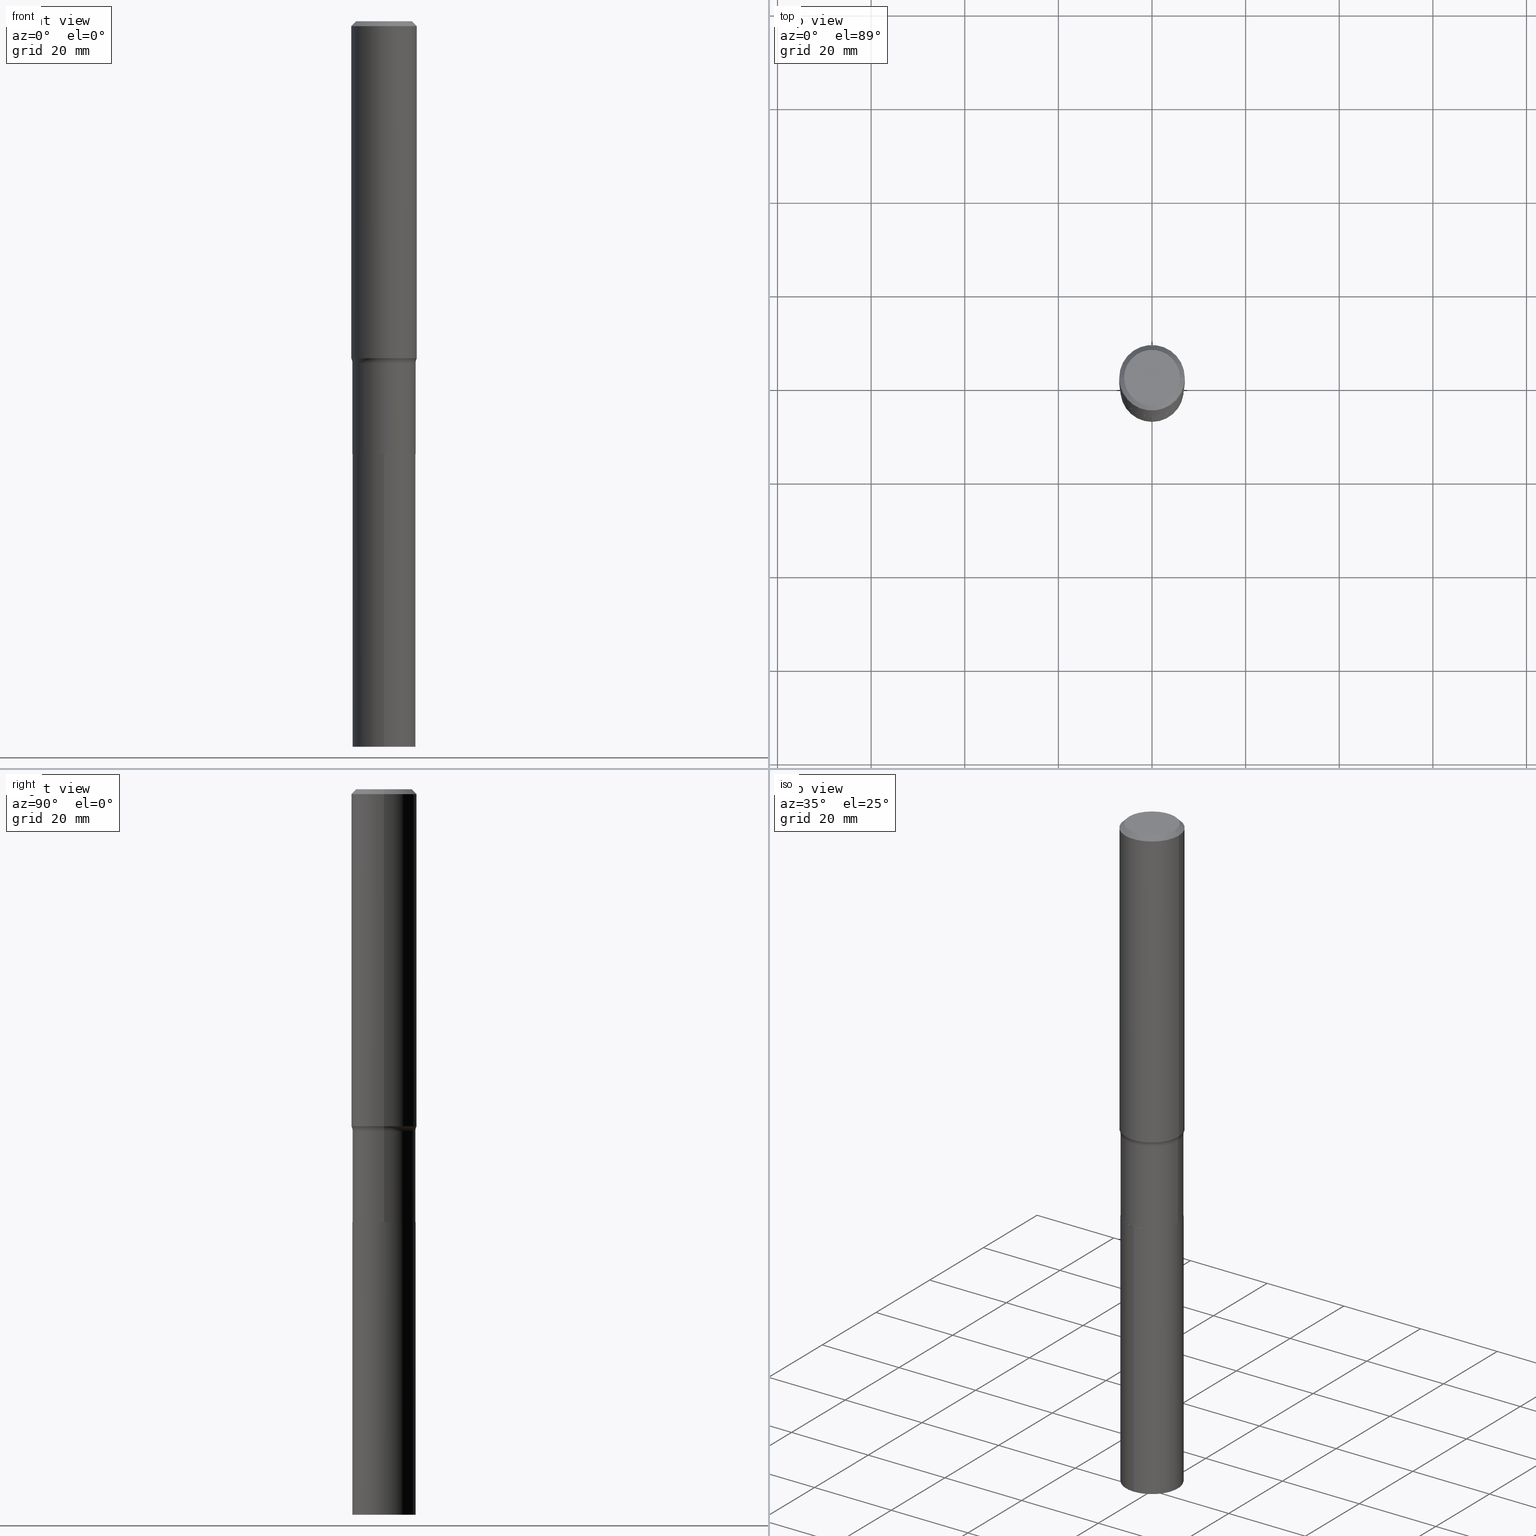
[diagram: canonical four-view strip — front | top / right | iso, engineering-drawing reading convention]
A machine part, canonical four-view strip (front | top / right | iso — engineering-drawing reading convention). The complete STEP part file that produces these views, byte-faithful:
ISO-10303-21;
HEADER;
FILE_DESCRIPTION (( 'STEP AP203' ),
    '1' );
FILE_NAME ('58913.STEP',
    '2024-04-19T14:50:29',
    ( '' ),
    ( '' ),
    'SwSTEP 2.0',
    'SolidWorks 2023',
    '' );
FILE_SCHEMA (( 'CONFIG_CONTROL_DESIGN' ));
ENDSEC;

DATA;
#1 = APPROVAL_PERSON_ORGANIZATION ( #173, #232, #253 ) ;
#2 = AXIS2_PLACEMENT_3D ( 'NONE', #134, #61, #28 ) ;
#3 = ORIENTED_EDGE ( 'NONE', *, *, #407, .T. ) ;
#4 = EDGE_CURVE ( 'NONE', #175, #181, #406, .T. ) ;
#5 = CARTESIAN_POINT ( 'NONE',  ( 1.492223714302713929E-28, -2.130783589276710899E-14, -6.102400000000001157 ) ) ;
#6 = EDGE_CURVE ( 'NONE', #316, #137, #240, .T. ) ;
#7 = DIRECTION ( 'NONE',  ( -1.000000000000000000, 6.982962677686265922E-15, -4.876176775795935793E-29 ) ) ;
#8 = CARTESIAN_POINT ( 'NONE',  ( 0.2655999999999999472, -1.854674887193472050E-15, 1.295112551651400461E-29 ) ) ;
#9 = CONICAL_SURFACE ( 'NONE', #19, 0.2651000000000000023, 0.7853981633972775267 ) ;
#10 = VERTEX_POINT ( 'NONE', #158 ) ;
#11 = CC_DESIGN_APPROVAL ( #464, ( #20 ) ) ;
#12 = DIRECTION ( 'NONE',  ( -0.7071067811864267805, 7.493145998869918709E-15, 0.7071067811866682540 ) ) ;
#13 = DESIGN_CONTEXT ( 'detailed design', #108, 'design' ) ;
#14 = CARTESIAN_POINT ( 'NONE',  ( 1.492223714302713929E-28, -2.130783589276710899E-14, -6.102400000000001157 ) ) ;
#15 = CC_DESIGN_DATE_AND_TIME_ASSIGNMENT ( #428, #112, ( #119 ) ) ;
#16 = DIRECTION ( 'NONE',  ( -2.445468806185136597E-29, 3.491481338843145583E-15, 1.000000000000000000 ) ) ;
#17 = CARTESIAN_POINT ( 'NONE',  ( 7.027543708334228001E-29, -1.003346992343354799E-14, -2.873699999999999921 ) ) ;
#18 = DIRECTION ( 'NONE',  ( 1.000000000000000000, -6.982962677686267499E-15, 4.876157962347795834E-29 ) ) ;
#19 = AXIS2_PLACEMENT_3D ( 'NONE', #154, #259, #369 ) ;
#20 = SECURITY_CLASSIFICATION ( '', '', #325 ) ;
#21 = CARTESIAN_POINT ( 'NONE',  ( 8.904930110842557101E-29, -1.271388014726343106E-14, -3.641399999999999970 ) ) ;
#22 = CARTESIAN_POINT ( 'NONE',  ( 1.010956804476941872E-30, -1.443378385477765316E-16, -0.04134000000000025848 ) ) ;
#23 = EDGE_CURVE ( 'NONE', #175, #341, #335, .T. ) ;
#24 = DIRECTION ( 'NONE',  ( -2.445468806185136597E-29, 3.491481338843145583E-15, 1.000000000000000000 ) ) ;
#25 = DIRECTION ( 'NONE',  ( 1.000000000000000000, -6.982962677686265922E-15, 4.876176775795935793E-29 ) ) ;
#26 = AXIS2_PLACEMENT_3D ( 'NONE', #445, #365, #7 ) ;
#27 = ORIENTED_EDGE ( 'NONE', *, *, #238, .F. ) ;
#28 = DIRECTION ( 'NONE',  ( 1.000000000000000000, 0.000000000000000000, 0.000000000000000000 ) ) ;
#29 = ORIENTED_EDGE ( 'NONE', *, *, #23, .T. ) ;
#30 = VERTEX_POINT ( 'NONE', #217 ) ;
#31 = AXIS2_PLACEMENT_3D ( 'NONE', #455, #135, #277 ) ;
#32 = CIRCLE ( 'NONE', #133, 0.2756000000000003447 ) ;
#33 = ORIENTED_EDGE ( 'NONE', *, *, #174, .T. ) ;
#34 = ORIENTED_EDGE ( 'NONE', *, *, #209, .T. ) ;
#35 = DIRECTION ( 'NONE',  ( -2.445468806185136597E-29, 3.491481338843145583E-15, 1.000000000000000000 ) ) ;
#36 = PERSON_AND_ORGANIZATION ( #323, #433 ) ;
#37 = TOROIDAL_SURFACE ( 'NONE', #423, 0.3455999999999998518, 0.08000000000000000167 ) ;
#38 = AXIS2_PLACEMENT_3D ( 'NONE', #405, #120, #296 ) ;
#39 = DIRECTION ( 'NONE',  ( 2.445468806185136597E-29, -3.491481338843145583E-15, -1.000000000000000000 ) ) ;
#40 = EDGE_CURVE ( 'NONE', #341, #175, #183, .T. ) ;
#41 = DIRECTION ( 'NONE',  ( 6.982962677686265922E-15, 1.000000000000000000, -3.492058409387922113E-15 ) ) ;
#42 = DIRECTION ( 'NONE',  ( -2.445468806185136597E-29, 3.491481338843145583E-15, 1.000000000000000000 ) ) ;
#43 = FACE_OUTER_BOUND ( 'NONE', #219, .T. ) ;
#44 = CARTESIAN_POINT ( 'NONE',  ( 1.010956804476941872E-30, -1.443378385477765316E-16, -0.04134000000000025848 ) ) ;
#45 = AXIS2_PLACEMENT_3D ( 'NONE', #243, #384, #97 ) ;
#46 = DIRECTION ( 'NONE',  ( 1.000000000000000000, -6.982962677686267499E-15, 4.876176775795935793E-29 ) ) ;
#47 = VECTOR ( 'NONE', #375, 39.37007874015748143 ) ;
#48 = CARTESIAN_POINT ( 'NONE',  ( -0.2651000000000000023, -1.083023135476340624E-14, -3.641399999999999970 ) ) ;
#49 = DIRECTION ( 'NONE',  ( -2.445468806185136597E-29, 3.491481338843145583E-15, 1.000000000000000000 ) ) ;
#50 = CARTESIAN_POINT ( 'NONE',  ( -2.608665447120605644E-29, -4.641308619886846511E-14, -6.102400000000001157 ) ) ;
#51 = DIRECTION ( 'NONE',  ( -1.000000000000000000, 6.982962677686267499E-15, 0.000000000000000000 ) ) ;
#52 = ORIENTED_EDGE ( 'NONE', *, *, #4, .F. ) ;
#53 = CC_DESIGN_PERSON_AND_ORGANIZATION_ASSIGNMENT ( #36, #71, ( #56 ) ) ;
#54 = FACE_OUTER_BOUND ( 'NONE', #458, .T. ) ;
#55 = PLANE ( 'NONE',  #387 ) ;
#56 = PRODUCT_DEFINITION_FORMATION_WITH_SPECIFIED_SOURCE ( 'ANY', '', #357, .NOT_KNOWN. ) ;
#57 = EDGE_CURVE ( 'NONE', #421, #297, #460, .T. ) ;
#58 = CARTESIAN_POINT ( 'NONE',  ( -0.2756000000000000116, 1.780166675422558965E-15, -0.04134000000000025848 ) ) ;
#59 = DIRECTION ( 'NONE',  ( 1.000000000000000000, -6.982962677686264344E-15, 0.000000000000000000 ) ) ;
#60 = LOCAL_TIME ( 10, 50, 29.00000000000000000, #260 ) ;
#61 = DIRECTION ( 'NONE',  ( 0.000000000000000000, 0.000000000000000000, 1.000000000000000000 ) ) ;
#62 = ORIENTED_EDGE ( 'NONE', *, *, #378, .F. ) ;
#63 = EDGE_LOOP ( 'NONE', ( #29, #64, #462, #52 ) ) ;
#64 = ORIENTED_EDGE ( 'NONE', *, *, #437, .T. ) ;
#65 = COORDINATED_UNIVERSAL_TIME_OFFSET ( 5, 0, .BEHIND. ) ;
#66 = LOCAL_TIME ( 10, 50, 29.00000000000000000, #65 ) ;
#67 = ORIENTED_EDGE ( 'NONE', *, *, #278, .T. ) ;
#68 = APPROVAL_ROLE ( '' ) ;
#69 = ADVANCED_FACE ( 'NONE', ( #74 ), #262, .T. ) ;
#70 = ORIENTED_EDGE ( 'NONE', *, *, #276, .F. ) ;
#71 = PERSON_AND_ORGANIZATION_ROLE ( 'creator' ) ;
#72 = LINE ( 'NONE', #218, #291 ) ;
#73 = ADVANCED_FACE ( 'NONE', ( #188 ), #132, .F. ) ;
#74 = FACE_OUTER_BOUND ( 'NONE', #334, .T. ) ;
#75 = PERSON_AND_ORGANIZATION ( #323, #433 ) ;
#76 = AXIS2_PLACEMENT_3D ( 'NONE', #131, #126, #59 ) ;
#77 = AXIS2_PLACEMENT_3D ( 'NONE', #83, #302, #370 ) ;
#78 = CYLINDRICAL_SURFACE ( 'NONE', #101, 0.2756000000000001782 ) ;
#79 = CARTESIAN_POINT ( 'NONE',  ( -0.2656000000000000028, -9.485600658834952659E-15, -3.640899999999999803 ) ) ;
#80 = MANIFOLD_SOLID_BREP ( 'Body-Move/Copy2[1]', #228 ) ;
#81 = DIRECTION ( 'NONE',  ( 1.000000000000000000, -6.982962677686265922E-15, 0.000000000000000000 ) ) ;
#82 = CC_DESIGN_PERSON_AND_ORGANIZATION_ASSIGNMENT ( #328, #426, ( #20 ) ) ;
#83 = CARTESIAN_POINT ( 'NONE',  ( 8.904930110842557101E-29, -1.271388014726343106E-14, -3.641399999999999970 ) ) ;
#84 = CARTESIAN_POINT ( 'NONE',  ( -0.3455999999999998518, -7.577834228646642402E-15, -2.873699999999999921 ) ) ;
#85 = DIRECTION ( 'NONE',  ( -6.982962677686265133E-15, -1.000000000000000000, 4.114228906120878260E-15 ) ) ;
#86 = CIRCLE ( 'NONE', #402, 0.2342600000000000238 ) ;
#87 = DIRECTION ( 'NONE',  ( -2.445468806185136597E-29, 3.491481338843145583E-15, 1.000000000000000000 ) ) ;
#88 = AXIS2_PLACEMENT_3D ( 'NONE', #299, #16, #306 ) ;
#89 = CARTESIAN_POINT ( 'NONE',  ( -0.2651000000000000023, -1.082758212758929425E-14, -3.641399999999999970 ) ) ;
#90 = DIRECTION ( 'NONE',  ( -2.445468806185136597E-29, 3.491481338843145583E-15, 1.000000000000000000 ) ) ;
#91 = CYLINDRICAL_SURFACE ( 'NONE', #140, 0.2656000000000000028 ) ;
#92 = CARTESIAN_POINT ( 'NONE',  ( 0.2656000000000000028, -1.456680929378748200E-14, -3.640899999999999803 ) ) ;
#93 = ADVANCED_FACE ( 'NONE', ( #113 ), #9, .T. ) ;
#94 = FACE_OUTER_BOUND ( 'NONE', #288, .T. ) ;
#95 = CIRCLE ( 'NONE', #255, 0.2656000000000000028 ) ;
#96 = CIRCLE ( 'NONE', #117, 0.2756000000000000116 ) ;
#97 = DIRECTION ( 'NONE',  ( -6.982962677686265133E-15, -1.000000000000000000, 4.114228906120878260E-15 ) ) ;
#98 = ADVANCED_FACE ( 'NONE', ( #152 ), #182, .F. ) ;
#99 = PERSON_AND_ORGANIZATION_ROLE ( 'design_owner' ) ;
#100 = ORIENTED_EDGE ( 'NONE', *, *, #189, .T. ) ;
#101 = AXIS2_PLACEMENT_3D ( 'NONE', #194, #235, #167 ) ;
#102 = PRODUCT_RELATED_PRODUCT_CATEGORY ( 'detail', '', ( #357 ) ) ;
#103 = ORIENTED_EDGE ( 'NONE', *, *, #268, .F. ) ;
#104 = PRODUCT_DEFINITION_SHAPE ( 'NONE', 'NONE',  #119 ) ;
#105 = ORIENTED_EDGE ( 'NONE', *, *, #106, .T. ) ;
#106 = EDGE_CURVE ( 'NONE', #137, #316, #95, .T. ) ;
#107 = ORIENTED_EDGE ( 'NONE', *, *, #174, .F. ) ;
#108 = APPLICATION_CONTEXT ( 'configuration controlled 3d designs of mechanical parts and assemblies' ) ;
#109 = PERSON_AND_ORGANIZATION_ROLE ( 'creator' ) ;
#110 = VECTOR ( 'NONE', #191, 39.37007874015748143 ) ;
#111 = EDGE_LOOP ( 'NONE', ( #300, #355, #103, #62 ) ) ;
#112 = DATE_TIME_ROLE ( 'creation_date' ) ;
#113 = FACE_OUTER_BOUND ( 'NONE', #63, .T. ) ;
#114 = PERSON_AND_ORGANIZATION ( #323, #433 ) ;
#115 = DIRECTION ( 'NONE',  ( -6.982962677686265133E-15, -1.000000000000000000, 4.114228906120878260E-15 ) ) ;
#116 = FACE_OUTER_BOUND ( 'NONE', #111, .T. ) ;
#117 = AXIS2_PLACEMENT_3D ( 'NONE', #392, #363, #333 ) ;
#118 = ORIENTED_EDGE ( 'NONE', *, *, #180, .T. ) ;
#119 = PRODUCT_DEFINITION ( 'UNKNOWN', '', #56, #13 ) ;
#120 = DIRECTION ( 'NONE',  ( -2.445065839977480244E-29, 3.492058409387921719E-15, 1.000000000000000000 ) ) ;
#121 = CARTESIAN_POINT ( 'NONE',  ( 0.2651000000000000023, -1.456506355311805971E-14, -3.641399999999999970 ) ) ;
#122 = DIRECTION ( 'NONE',  ( -2.445065839977479684E-29, 3.492058409387922113E-15, 1.000000000000000000 ) ) ;
#123 = ORIENTED_EDGE ( 'NONE', *, *, #343, .T. ) ;
#124 = CARTESIAN_POINT ( 'NONE',  ( 8.904930110842557101E-29, -1.271388014726343106E-14, -3.641399999999999970 ) ) ;
#125 = CC_DESIGN_SECURITY_CLASSIFICATION ( #20, ( #56 ) ) ;
#126 = DIRECTION ( 'NONE',  ( -2.445468806185136597E-29, 3.491481338843145583E-15, 1.000000000000000000 ) ) ;
#127 = FACE_OUTER_BOUND ( 'NONE', #290, .T. ) ;
#128 = ADVANCED_FACE ( 'NONE', ( #441 ), #246, .T. ) ;
#129 = DIRECTION ( 'NONE',  ( 1.000000000000000000, -6.982962677686262766E-15, 0.000000000000000000 ) ) ;
#130 = CARTESIAN_POINT ( 'NONE',  ( 0.000000000000000000, 0.000000000000000000, 0.000000000000000000 ) ) ;
#131 = CARTESIAN_POINT ( 'NONE',  ( 6.932831108733975921E-29, -9.898245432644209192E-15, -2.834970166537924996 ) ) ;
#132 = TOROIDAL_SURFACE ( 'NONE', #449, 0.3455999999999998518, 0.08000000000000000167 ) ;
#133 = AXIS2_PLACEMENT_3D ( 'NONE', #347, #49, #448 ) ;
#134 = CARTESIAN_POINT ( 'NONE',  ( 0.000000000000000000, 0.000000000000000000, 0.000000000000000000 ) ) ;
#135 = DIRECTION ( 'NONE',  ( -2.445468806185136597E-29, 3.491481338843145583E-15, 1.000000000000000000 ) ) ;
#136 =( NAMED_UNIT ( * ) SI_UNIT ( $, .STERADIAN. ) SOLID_ANGLE_UNIT ( ) );
#137 = VERTEX_POINT ( 'NONE', #295 ) ;
#138 = CC_DESIGN_PERSON_AND_ORGANIZATION_ASSIGNMENT ( #249, #99, ( #357 ) ) ;
#139 = ORIENTED_EDGE ( 'NONE', *, *, #349, .F. ) ;
#140 = AXIS2_PLACEMENT_3D ( 'NONE', #124, #274, #85 ) ;
#141 = COORDINATED_UNIVERSAL_TIME_OFFSET ( 5, 0, .BEHIND. ) ;
#142 = ADVANCED_FACE ( 'NONE', ( #403 ), #78, .T. ) ;
#143 = ORIENTED_EDGE ( 'NONE', *, *, #356, .T. ) ;
#144 = ORIENTED_EDGE ( 'NONE', *, *, #23, .F. ) ;
#145 = ORIENTED_EDGE ( 'NONE', *, *, #6, .T. ) ;
#146 = AXIS2_PLACEMENT_3D ( 'NONE', #22, #452, #51 ) ;
#147 = CALENDAR_DATE ( 2024, 19, 4 ) ;
#148 = CLOSED_SHELL ( 'NONE', ( #93, #224, #142, #73, #404, #247, #161, #69, #128, #98, #206, #457 ) ) ;
#149 = CIRCLE ( 'NONE', #38, 0.2656000000000000028 ) ;
#150 = DIRECTION ( 'NONE',  ( -2.445065839977480244E-29, 3.492058409387921719E-15, 1.000000000000000000 ) ) ;
#151 = CALENDAR_DATE ( 2024, 19, 4 ) ;
#152 = FACE_OUTER_BOUND ( 'NONE', #170, .T. ) ;
#153 = CC_DESIGN_PERSON_AND_ORGANIZATION_ASSIGNMENT ( #463, #466, ( #56 ) ) ;
#154 = CARTESIAN_POINT ( 'NONE',  ( 8.904930110842557101E-29, -1.271388014726343106E-14, -3.641399999999999970 ) ) ;
#155 = CARTESIAN_POINT ( 'NONE',  ( 1.887201506178914860E-15, 0.2655999999999872907, -3.641400000000001302 ) ) ;
#156 = ORIENTED_EDGE ( 'NONE', *, *, #57, .F. ) ;
#157 = CARTESIAN_POINT ( 'NONE',  ( 1.887201506178975602E-15, 0.2655999999999872907, -3.641400000000001302 ) ) ;
#158 = CARTESIAN_POINT ( 'NONE',  ( -1.854674887193383303E-15, -0.2656000000000127148, -3.641399999999999082 ) ) ;
#159 = DIRECTION ( 'NONE',  ( 1.000000000000000000, -6.982962677686266711E-15, 0.000000000000000000 ) ) ;
#160 = ORIENTED_EDGE ( 'NONE', *, *, #349, .T. ) ;
#161 = ADVANCED_FACE ( 'NONE', ( #94 ), #37, .F. ) ;
#162 = CC_DESIGN_APPROVAL ( #232, ( #56 ) ) ;
#163 = CYLINDRICAL_SURFACE ( 'NONE', #45, 0.2656000000000000028 ) ;
#164 = MECHANICAL_CONTEXT ( 'NONE', #429, 'mechanical' ) ;
#165 = DIRECTION ( 'NONE',  ( -6.982962677686266711E-15, -1.000000000000000000, 3.491481338843145583E-15 ) ) ;
#166 = CARTESIAN_POINT ( 'NONE',  ( 8.904930110842557101E-29, -1.271388014726343106E-14, -3.641399999999999970 ) ) ;
#167 = DIRECTION ( 'NONE',  ( 1.000000000000000000, -6.982962677686267499E-15, 4.876176775795935793E-29 ) ) ;
#168 = AXIS2_PLACEMENT_3D ( 'NONE', #84, #270, #229 ) ;
#169 = VECTOR ( 'NONE', #374, 39.37007874015748143 ) ;
#170 = EDGE_LOOP ( 'NONE', ( #34, #198 ) ) ;
#171 = ADVANCED_FACE ( 'NONE', ( #273 ), #163, .T. ) ;
#172 = ORIENTED_EDGE ( 'NONE', *, *, #189, .F. ) ;
#173 = PERSON_AND_ORGANIZATION ( #323, #433 ) ;
#174 = EDGE_CURVE ( 'NONE', #421, #282, #310, .T. ) ;
#175 = VERTEX_POINT ( 'NONE', #242 ) ;
#176 = AXIS2_PLACEMENT_3D ( 'NONE', #21, #410, #196 ) ;
#177 = PERSON_AND_ORGANIZATION ( #323, #433 ) ;
#178 = ORIENTED_EDGE ( 'NONE', *, *, #268, .T. ) ;
#179 = DATE_AND_TIME ( #147, #298 ) ;
#180 = EDGE_CURVE ( 'NONE', #467, #421, #364, .T. ) ;
#181 = VERTEX_POINT ( 'NONE', #92 ) ;
#182 = PLANE ( 'NONE',  #26 ) ;
#183 = CIRCLE ( 'NONE', #221, 0.2651000000000000023 ) ;
#184 = APPROVAL_DATE_TIME ( #399, #187 ) ;
#185 = AXIS2_PLACEMENT_3D ( 'NONE', #50, #122, #450 ) ;
#186 = EDGE_LOOP ( 'NONE', ( #145, #143, #257, #425 ) ) ;
#187 = APPROVAL ( #468, 'UNSPECIFIED' ) ;
#188 = FACE_OUTER_BOUND ( 'NONE', #251, .T. ) ;
#189 = EDGE_CURVE ( 'NONE', #390, #282, #203, .T. ) ;
#190 = ORIENTED_EDGE ( 'NONE', *, *, #6, .F. ) ;
#191 = DIRECTION ( 'NONE',  ( -2.445065839977480524E-29, 3.492058409387922113E-15, 1.000000000000000000 ) ) ;
#192 = UNCERTAINTY_MEASURE_WITH_UNIT (LENGTH_MEASURE( 1.000000000000000082E-05 ), #244, 'distance_accuracy_value', 'NONE');
#193 = CARTESIAN_POINT ( 'NONE',  ( -0.2342600000000000238, 1.707997756148671759E-15, 4.101342130332794026E-18 ) ) ;
#194 = CARTESIAN_POINT ( 'NONE',  ( 0.000000000000000000, 0.000000000000000000, 0.000000000000000000 ) ) ;
#195 = CC_DESIGN_DATE_AND_TIME_ASSIGNMENT ( #459, #293, ( #20 ) ) ;
#196 = DIRECTION ( 'NONE',  ( -6.982962677686265133E-15, -1.000000000000000000, 4.114228906120878260E-15 ) ) ;
#197 = FACE_OUTER_BOUND ( 'NONE', #292, .T. ) ;
#198 = ORIENTED_EDGE ( 'NONE', *, *, #238, .T. ) ;
#199 = CARTESIAN_POINT ( 'NONE',  ( 0.2756000000000001782, -1.924504513970336532E-15, 1.343874319409360828E-29 ) ) ;
#200 = AXIS2_PLACEMENT_3D ( 'NONE', #44, #39, #331 ) ;
#201 = CIRCLE ( 'NONE', #279, 0.2656000000000000028 ) ;
#202 = CARTESIAN_POINT ( 'NONE',  ( 0.2655999999999998917, -1.188814481062701964E-14, -2.873699999999999921 ) ) ;
#203 = LINE ( 'NONE', #58, #350 ) ;
#204 = LENGTH_MEASURE_WITH_UNIT ( LENGTH_MEASURE( 0.02539999999999999897 ), #207 );
#205 = APPROVAL_PERSON_ORGANIZATION ( #75, #187, #431 ) ;
#206 = ADVANCED_FACE ( 'NONE', ( #308 ), #340, .F. ) ;
#207 =( LENGTH_UNIT ( ) NAMED_UNIT ( * ) SI_UNIT ( $, .METRE. ) );
#208 = ORIENTED_EDGE ( 'NONE', *, *, #276, .T. ) ;
#209 = EDGE_CURVE ( 'NONE', #390, #30, #86, .T. ) ;
#210 = ORIENTED_EDGE ( 'NONE', *, *, #309, .T. ) ;
#211 = ORIENTED_EDGE ( 'NONE', *, *, #57, .T. ) ;
#212 = APPROVAL_PERSON_ORGANIZATION ( #114, #464, #68 ) ;
#213 = CALENDAR_DATE ( 2024, 19, 4 ) ;
#214 = VERTEX_POINT ( 'NONE', #202 ) ;
#215 = APPROVAL_STATUS ( 'not_yet_approved' ) ;
#216 = DIRECTION ( 'NONE',  ( 2.445065839977479684E-29, -3.492058409387922113E-15, -1.000000000000000000 ) ) ;
#217 = CARTESIAN_POINT ( 'NONE',  ( 0.2342600000000000238, -1.821115673845785155E-15, 4.101342130356573868E-18 ) ) ;
#218 = CARTESIAN_POINT ( 'NONE',  ( 0.2756000000000000116, -2.035091086733610886E-15, -0.04134000000000025848 ) ) ;
#219 = EDGE_LOOP ( 'NONE', ( #379, #409, #430, #326 ) ) ;
#220 = CC_DESIGN_PERSON_AND_ORGANIZATION_ASSIGNMENT ( #177, #109, ( #119 ) ) ;
#221 = AXIS2_PLACEMENT_3D ( 'NONE', #438, #35, #81 ) ;
#222 = CIRCLE ( 'NONE', #318, 0.2655999999999998917 ) ;
#223 = ORIENTED_EDGE ( 'NONE', *, *, #343, .F. ) ;
#224 = ADVANCED_FACE ( 'NONE', ( #311 ), #413, .T. ) ;
#225 = DIRECTION ( 'NONE',  ( 1.000000000000000000, -6.982962677686266711E-15, 4.876176775795936353E-29 ) ) ;
#226 = CARTESIAN_POINT ( 'NONE',  ( 0.000000000000000000, 0.000000000000000000, 0.000000000000000000 ) ) ;
#227 = LINE ( 'NONE', #48, #327 ) ;
#228 = CLOSED_SHELL ( 'NONE', ( #171, #424, #354, #301 ) ) ;
#229 = DIRECTION ( 'NONE',  ( -1.000000000000000000, 7.105427357601001859E-15, 0.000000000000000000 ) ) ;
#230 = CARTESIAN_POINT ( 'NONE',  ( -0.2655999999999999472, 1.887201506178825719E-15, -1.306469159971702786E-29 ) ) ;
#231 = CC_DESIGN_APPROVAL ( #187, ( #119 ) ) ;
#232 = APPROVAL ( #256, 'UNSPECIFIED' ) ;
#233 = CARTESIAN_POINT ( 'NONE',  ( -1.854674887193383303E-15, -0.2656000000000127148, -3.641399999999999082 ) ) ;
#234 = LINE ( 'NONE', #155, #110 ) ;
#235 = DIRECTION ( 'NONE',  ( -2.445468806185136597E-29, 3.491481338843145583E-15, 1.000000000000000000 ) ) ;
#236 = ORIENTED_EDGE ( 'NONE', *, *, #106, .F. ) ;
#237 = DIRECTION ( 'NONE',  ( -2.445468806185136597E-29, 3.491481338843145583E-15, 1.000000000000000000 ) ) ;
#238 = EDGE_CURVE ( 'NONE', #30, #390, #412, .T. ) ;
#239 = LINE ( 'NONE', #233, #47 ) ;
#240 = CIRCLE ( 'NONE', #372, 0.2656000000000000028 ) ;
#241 =( GEOMETRIC_REPRESENTATION_CONTEXT ( 3 ) GLOBAL_UNCERTAINTY_ASSIGNED_CONTEXT ( ( #192 ) ) GLOBAL_UNIT_ASSIGNED_CONTEXT ( ( #244, #315, #136 ) ) REPRESENTATION_CONTEXT ( 'NONE', 'WORKASPACE' ) );
#242 = CARTESIAN_POINT ( 'NONE',  ( 0.2651000000000000023, -1.456506355311805971E-14, -3.641399999999999970 ) ) ;
#243 = CARTESIAN_POINT ( 'NONE',  ( 8.904930110842557101E-29, -1.271388014726343106E-14, -3.641399999999999970 ) ) ;
#244 =( CONVERSION_BASED_UNIT ( 'INCH', #204 ) LENGTH_UNIT ( ) NAMED_UNIT ( #250 ) );
#245 = APPLICATION_PROTOCOL_DEFINITION ( 'international standard', 'config_control_design', 1994, #108 ) ;
#246 = CONICAL_SURFACE ( 'NONE', #200, 0.2756000000000000116, 0.7853981633974450594 ) ;
#247 = ADVANCED_FACE ( 'NONE', ( #197 ), #281, .T. ) ;
#248 = EDGE_LOOP ( 'NONE', ( #3, #427 ) ) ;
#249 = PERSON_AND_ORGANIZATION ( #323, #433 ) ;
#250 = DIMENSIONAL_EXPONENTS ( 1.000000000000000000, 0.000000000000000000, 0.000000000000000000, 0.000000000000000000, 0.000000000000000000, 0.000000000000000000, 0.000000000000000000 ) ;
#251 = EDGE_LOOP ( 'NONE', ( #70, #211, #67, #352 ) ) ;
#252 = ORIENTED_EDGE ( 'NONE', *, *, #356, .F. ) ;
#253 = APPROVAL_ROLE ( '' ) ;
#254 = EDGE_LOOP ( 'NONE', ( #144, #287 ) ) ;
#255 = AXIS2_PLACEMENT_3D ( 'NONE', #5, #367, #303 ) ;
#256 = APPROVAL_STATUS ( 'not_yet_approved' ) ;
#257 = ORIENTED_EDGE ( 'NONE', *, *, #407, .F. ) ;
#258 = COORDINATED_UNIVERSAL_TIME_OFFSET ( 5, 0, .BEHIND. ) ;
#259 = DIRECTION ( 'NONE',  ( -2.445468806185136597E-29, 3.491481338843145583E-15, 1.000000000000000000 ) ) ;
#260 = COORDINATED_UNIVERSAL_TIME_OFFSET ( 5, 0, .BEHIND. ) ;
#261 = EDGE_CURVE ( 'NONE', #316, #10, #239, .T. ) ;
#262 = CYLINDRICAL_SURFACE ( 'NONE', #432, 0.2756000000000001782 ) ;
#263 = AXIS2_PLACEMENT_3D ( 'NONE', #451, #165, #129 ) ;
#264 = CYLINDRICAL_SURFACE ( 'NONE', #284, 0.2655999999999999472 ) ;
#265 = ORIENTED_EDGE ( 'NONE', *, *, #440, .T. ) ;
#266 = DIRECTION ( 'NONE',  ( 1.000000000000000000, -6.982962677686267499E-15, 0.000000000000000000 ) ) ;
#267 = DIRECTION ( 'NONE',  ( 1.000000000000000000, -6.982962677686265922E-15, 0.000000000000000000 ) ) ;
#268 = EDGE_CURVE ( 'NONE', #214, #297, #222, .T. ) ;
#269 = CARTESIAN_POINT ( 'NONE',  ( 0.2756000000000004002, -1.182274994661454730E-14, -2.834970166537924996 ) ) ;
#270 = DIRECTION ( 'NONE',  ( 7.105427357601001859E-15, 1.000000000000000000, -3.491481338843145583E-15 ) ) ;
#271 = LINE ( 'NONE', #230, #169 ) ;
#272 = AXIS2_PLACEMENT_3D ( 'NONE', #17, #24, #159 ) ;
#273 = FACE_OUTER_BOUND ( 'NONE', #186, .T. ) ;
#274 = DIRECTION ( 'NONE',  ( -2.445065839977480244E-29, 3.492058409387921719E-15, 1.000000000000000000 ) ) ;
#275 = CARTESIAN_POINT ( 'NONE',  ( -0.2655999999999998917, -9.485600658834952659E-15, -2.873699999999999921 ) ) ;
#276 = EDGE_CURVE ( 'NONE', #421, #467, #32, .T. ) ;
#277 = DIRECTION ( 'NONE',  ( 1.000000000000000000, -6.982962677686267499E-15, 4.876157962347795834E-29 ) ) ;
#278 = EDGE_CURVE ( 'NONE', #297, #214, #345, .T. ) ;
#279 = AXIS2_PLACEMENT_3D ( 'NONE', #417, #237, #380 ) ;
#280 = DIRECTION ( 'NONE',  ( -2.445468806185136877E-29, 3.491481338843145188E-15, 1.000000000000000000 ) ) ;
#281 = CYLINDRICAL_SURFACE ( 'NONE', #395, 0.2655999999999999472 ) ;
#282 = VERTEX_POINT ( 'NONE', #416 ) ;
#283 = VECTOR ( 'NONE', #280, 39.37007874015748143 ) ;
#284 = AXIS2_PLACEMENT_3D ( 'NONE', #336, #304, #225 ) ;
#285 = ORIENTED_EDGE ( 'NONE', *, *, #261, .T. ) ;
#286 = DATE_AND_TIME ( #213, #60 ) ;
#287 = ORIENTED_EDGE ( 'NONE', *, *, #40, .F. ) ;
#288 = EDGE_LOOP ( 'NONE', ( #156, #361, #465, #178 ) ) ;
#289 = CARTESIAN_POINT ( 'NONE',  ( -1.854674887193322955E-15, -0.2656000000000213190, -6.102400000000000269 ) ) ;
#290 = EDGE_LOOP ( 'NONE', ( #252, #105, #285, #353 ) ) ;
#291 = VECTOR ( 'NONE', #322, 39.37007874015748143 ) ;
#292 = EDGE_LOOP ( 'NONE', ( #359, #265, #320, #324 ) ) ;
#293 = DATE_TIME_ROLE ( 'classification_date' ) ;
#294 = EDGE_CURVE ( 'NONE', #467, #214, #307, .T. ) ;
#295 = CARTESIAN_POINT ( 'NONE',  ( 1.887201506178944837E-15, 0.2655999999999786865, -6.102400000000002045 ) ) ;
#296 = DIRECTION ( 'NONE',  ( -6.982962677686265133E-15, -1.000000000000000000, 4.114228906120878260E-15 ) ) ;
#297 = VERTEX_POINT ( 'NONE', #275 ) ;
#298 = LOCAL_TIME ( 10, 50, 29.00000000000000000, #394 ) ;
#299 = CARTESIAN_POINT ( 'NONE',  ( 8.903707376439464300E-29, -1.271213440659400877E-14, -3.640899999999999803 ) ) ;
#300 = ORIENTED_EDGE ( 'NONE', *, *, #391, .T. ) ;
#301 = ADVANCED_FACE ( 'NONE', ( #418 ), #55, .F. ) ;
#302 = DIRECTION ( 'NONE',  ( -2.445468806185136597E-29, 3.491481338843145583E-15, 1.000000000000000000 ) ) ;
#303 = DIRECTION ( 'NONE',  ( -6.982962677686265133E-15, -1.000000000000000000, 4.114228906120878260E-15 ) ) ;
#304 = DIRECTION ( 'NONE',  ( -2.445468806185136597E-29, 3.491481338843145583E-15, 1.000000000000000000 ) ) ;
#305 = DIRECTION ( 'NONE',  ( -0.7071067811865452413, 2.468850131082233000E-15, -0.7071067811865497932 ) ) ;
#306 = DIRECTION ( 'NONE',  ( 1.000000000000000000, -6.982962677686263555E-15, 0.000000000000000000 ) ) ;
#307 = CIRCLE ( 'NONE', #263, 0.07999999999999996003 ) ;
#308 = FACE_OUTER_BOUND ( 'NONE', #254, .T. ) ;
#309 = EDGE_CURVE ( 'NONE', #30, #337, #72, .T. ) ;
#310 = LINE ( 'NONE', #453, #283 ) ;
#311 = FACE_OUTER_BOUND ( 'NONE', #456, .T. ) ;
#312 = VECTOR ( 'NONE', #400, 39.37007874015748143 ) ;
#313 = VECTOR ( 'NONE', #344, 39.37007874015748143 ) ;
#314 = CARTESIAN_POINT ( 'NONE',  ( -1.002970424325033577E-46, 1.431975951230896486E-32, 4.101342130344485961E-18 ) ) ;
#315 =( NAMED_UNIT ( * ) PLANE_ANGLE_UNIT ( ) SI_UNIT ( $, .RADIAN. ) );
#316 = VERTEX_POINT ( 'NONE', #289 ) ;
#317 = ORIENTED_EDGE ( 'NONE', *, *, #329, .F. ) ;
#318 = AXIS2_PLACEMENT_3D ( 'NONE', #381, #338, #383 ) ;
#319 = EDGE_LOOP ( 'NONE', ( #434, #393, #100, #160 ) ) ;
#320 = ORIENTED_EDGE ( 'NONE', *, *, #378, .T. ) ;
#321 = CALENDAR_DATE ( 2024, 19, 4 ) ;
#322 = DIRECTION ( 'NONE',  ( 0.7071067811865452413, -7.319954787623248157E-15, -0.7071067811865497932 ) ) ;
#323 = PERSON ( 'UNSPECIFIED', 'UNSPECIFIED', 'UNSPECIFIED', ('UNSPECIFIED'), ('UNSPECIFIED'), ('UNSPECIFIED') ) ;
#324 = ORIENTED_EDGE ( 'NONE', *, *, #278, .F. ) ;
#325 = SECURITY_CLASSIFICATION_LEVEL ( 'unclassified' ) ;
#326 = ORIENTED_EDGE ( 'NONE', *, *, #440, .F. ) ;
#327 = VECTOR ( 'NONE', #12, 39.37007874015748143 ) ;
#328 = PERSON_AND_ORGANIZATION ( #323, #433 ) ;
#329 = EDGE_CURVE ( 'NONE', #337, #282, #96, .T. ) ;
#330 = CARTESIAN_POINT ( 'NONE',  ( 8.904930110842557101E-29, -1.271388014726343106E-14, -3.641399999999999970 ) ) ;
#331 = DIRECTION ( 'NONE',  ( -1.000000000000000000, 6.982962677686267499E-15, 0.000000000000000000 ) ) ;
#332 = DIRECTION ( 'NONE',  ( -2.445468806185136597E-29, 3.491481338843145583E-15, 1.000000000000000000 ) ) ;
#333 = DIRECTION ( 'NONE',  ( 1.000000000000000000, -6.982962677686267499E-15, 0.000000000000000000 ) ) ;
#334 = EDGE_LOOP ( 'NONE', ( #107, #208, #123, #139 ) ) ;
#335 = CIRCLE ( 'NONE', #386, 0.2651000000000000023 ) ;
#336 = CARTESIAN_POINT ( 'NONE',  ( 0.000000000000000000, 0.000000000000000000, 0.000000000000000000 ) ) ;
#337 = VERTEX_POINT ( 'NONE', #439 ) ;
#338 = DIRECTION ( 'NONE',  ( -2.445468806185136597E-29, 3.491481338843145583E-15, 1.000000000000000000 ) ) ;
#339 = LINE ( 'NONE', #199, #313 ) ;
#340 = PLANE ( 'NONE',  #342 ) ;
#341 = VERTEX_POINT ( 'NONE', #89 ) ;
#342 = AXIS2_PLACEMENT_3D ( 'NONE', #166, #348, #25 ) ;
#343 = EDGE_CURVE ( 'NONE', #467, #337, #339, .T. ) ;
#344 = DIRECTION ( 'NONE',  ( -2.445468806185136877E-29, 3.491481338843145188E-15, 1.000000000000000000 ) ) ;
#345 = CIRCLE ( 'NONE', #272, 0.2655999999999998917 ) ;
#346 = DIRECTION ( 'NONE',  ( -2.445468806185136597E-29, 3.491481338843145583E-15, 1.000000000000000000 ) ) ;
#347 = CARTESIAN_POINT ( 'NONE',  ( 6.932831108733975921E-29, -9.898245432644209192E-15, -2.834970166537924996 ) ) ;
#348 = DIRECTION ( 'NONE',  ( -2.438088387897960049E-29, 3.491481338843145188E-15, 1.000000000000000000 ) ) ;
#349 = EDGE_CURVE ( 'NONE', #282, #337, #373, .T. ) ;
#350 = VECTOR ( 'NONE', #305, 39.37007874015748143 ) ;
#351 = CIRCLE ( 'NONE', #176, 0.2656000000000000028 ) ;
#352 = ORIENTED_EDGE ( 'NONE', *, *, #294, .F. ) ;
#353 = ORIENTED_EDGE ( 'NONE', *, *, #446, .F. ) ;
#354 = ADVANCED_FACE ( 'NONE', ( #127 ), #91, .T. ) ;
#355 = ORIENTED_EDGE ( 'NONE', *, *, #415, .T. ) ;
#356 = EDGE_CURVE ( 'NONE', #137, #443, #234, .T. ) ;
#357 = PRODUCT ( '58913', '58913', '', ( #164 ) ) ;
#358 = VECTOR ( 'NONE', #444, 39.37007874015748143 ) ;
#359 = ORIENTED_EDGE ( 'NONE', *, *, #415, .F. ) ;
#360 = SHAPE_DEFINITION_REPRESENTATION ( #104, #385 ) ;
#361 = ORIENTED_EDGE ( 'NONE', *, *, #180, .F. ) ;
#362 = CARTESIAN_POINT ( 'NONE',  ( 7.027543708334228001E-29, -1.003346992343354799E-14, -2.873699999999999921 ) ) ;
#363 = DIRECTION ( 'NONE',  ( -2.445468806185136597E-29, 3.491481338843145583E-15, 1.000000000000000000 ) ) ;
#364 = CIRCLE ( 'NONE', #76, 0.2756000000000003447 ) ;
#365 = DIRECTION ( 'NONE',  ( 2.438088387897960049E-29, -3.491481338843145188E-15, -1.000000000000000000 ) ) ;
#366 = LOCAL_TIME ( 10, 50, 29.00000000000000000, #258 ) ;
#367 = DIRECTION ( 'NONE',  ( -2.445065839977480244E-29, 3.492058409387921719E-15, 1.000000000000000000 ) ) ;
#368 = CARTESIAN_POINT ( 'NONE',  ( -0.2756000000000004002, -7.939989652889369447E-15, -2.834970166537924996 ) ) ;
#369 = DIRECTION ( 'NONE',  ( 1.000000000000000000, -6.982962677686265922E-15, 0.000000000000000000 ) ) ;
#370 = DIRECTION ( 'NONE',  ( 1.000000000000000000, -6.982962677686265922E-15, 0.000000000000000000 ) ) ;
#371 = DIRECTION ( 'NONE',  ( 1.000000000000000000, -6.982962677686265133E-15, 4.883557194083112901E-29 ) ) ;
#372 = AXIS2_PLACEMENT_3D ( 'NONE', #14, #150, #115 ) ;
#373 = CIRCLE ( 'NONE', #454, 0.2756000000000000116 ) ;
#374 = DIRECTION ( 'NONE',  ( -2.445468806185136877E-29, 3.491481338843145188E-15, 1.000000000000000000 ) ) ;
#375 = DIRECTION ( 'NONE',  ( -2.445065839977480524E-29, 3.492058409387922113E-15, 1.000000000000000000 ) ) ;
#376 = PLANE ( 'NONE',  #185 ) ;
#377 = DIRECTION ( 'NONE',  ( 1.000000000000000000, -6.982962677686265133E-15, 4.883557194083112901E-29 ) ) ;
#378 = EDGE_CURVE ( 'NONE', #181, #214, #447, .T. ) ;
#379 = ORIENTED_EDGE ( 'NONE', *, *, #437, .F. ) ;
#380 = DIRECTION ( 'NONE',  ( 1.000000000000000000, -6.982962677686263555E-15, 0.000000000000000000 ) ) ;
#381 = CARTESIAN_POINT ( 'NONE',  ( 7.027543708334228001E-29, -1.003346992343354799E-14, -2.873699999999999921 ) ) ;
#382 = CIRCLE ( 'NONE', #88, 0.2656000000000000028 ) ;
#383 = DIRECTION ( 'NONE',  ( 1.000000000000000000, -6.982962677686266711E-15, 0.000000000000000000 ) ) ;
#384 = DIRECTION ( 'NONE',  ( -2.445065839977480244E-29, 3.492058409387921719E-15, 1.000000000000000000 ) ) ;
#385 = ADVANCED_BREP_SHAPE_REPRESENTATION ( '58913', ( #80, #388, #2 ), #241 ) ;
#386 = AXIS2_PLACEMENT_3D ( 'NONE', #411, #42, #267 ) ;
#387 = AXIS2_PLACEMENT_3D ( 'NONE', #330, #216, #41 ) ;
#388 = MANIFOLD_SOLID_BREP ( 'Body-Move/Copy2[2]', #148 ) ;
#389 = EDGE_LOOP ( 'NONE', ( #118, #33, #317, #223 ) ) ;
#390 = VERTEX_POINT ( 'NONE', #193 ) ;
#391 = EDGE_CURVE ( 'NONE', #181, #396, #382, .T. ) ;
#392 = CARTESIAN_POINT ( 'NONE',  ( 1.010956804476941872E-30, -1.443378385477765316E-16, -0.04134000000000025848 ) ) ;
#393 = ORIENTED_EDGE ( 'NONE', *, *, #209, .F. ) ;
#394 = COORDINATED_UNIVERSAL_TIME_OFFSET ( 5, 0, .BEHIND. ) ;
#395 = AXIS2_PLACEMENT_3D ( 'NONE', #130, #87, #419 ) ;
#396 = VERTEX_POINT ( 'NONE', #79 ) ;
#397 = CALENDAR_DATE ( 2024, 19, 4 ) ;
#398 = ORIENTED_EDGE ( 'NONE', *, *, #329, .T. ) ;
#399 = DATE_AND_TIME ( #397, #461 ) ;
#400 = DIRECTION ( 'NONE',  ( 0.7071067811864267805, -2.468850131080992517E-15, 0.7071067811866682540 ) ) ;
#401 = APPROVAL_DATE_TIME ( #286, #464 ) ;
#402 = AXIS2_PLACEMENT_3D ( 'NONE', #314, #346, #18 ) ;
#403 = FACE_OUTER_BOUND ( 'NONE', #389, .T. ) ;
#404 = ADVANCED_FACE ( 'NONE', ( #116 ), #264, .T. ) ;
#405 = CARTESIAN_POINT ( 'NONE',  ( 8.904930110842557101E-29, -1.271388014726343106E-14, -3.641399999999999970 ) ) ;
#406 = LINE ( 'NONE', #121, #312 ) ;
#407 = EDGE_CURVE ( 'NONE', #10, #443, #351, .T. ) ;
#408 = CARTESIAN_POINT ( 'NONE',  ( 1.010956804476941872E-30, -1.443378385477765316E-16, -0.04134000000000025848 ) ) ;
#409 = ORIENTED_EDGE ( 'NONE', *, *, #40, .T. ) ;
#410 = DIRECTION ( 'NONE',  ( -2.445065839977480244E-29, 3.492058409387921719E-15, 1.000000000000000000 ) ) ;
#411 = CARTESIAN_POINT ( 'NONE',  ( 8.904930110842557101E-29, -1.271388014726343106E-14, -3.641399999999999970 ) ) ;
#412 = CIRCLE ( 'NONE', #31, 0.2342600000000000238 ) ;
#413 = CONICAL_SURFACE ( 'NONE', #146, 0.2756000000000000116, 0.7853981633974450594 ) ;
#414 = CONICAL_SURFACE ( 'NONE', #77, 0.2651000000000000023, 0.7853981633972775267 ) ;
#415 = EDGE_CURVE ( 'NONE', #396, #297, #271, .T. ) ;
#416 = CARTESIAN_POINT ( 'NONE',  ( -0.2756000000000000116, -3.063035855841154621E-15, -0.04134000000000025848 ) ) ;
#417 = CARTESIAN_POINT ( 'NONE',  ( 8.903707376439464300E-29, -1.271213440659400877E-14, -3.640899999999999803 ) ) ;
#418 = FACE_OUTER_BOUND ( 'NONE', #248, .T. ) ;
#419 = DIRECTION ( 'NONE',  ( 1.000000000000000000, -6.982962677686266711E-15, 4.876176775795936353E-29 ) ) ;
#420 = CARTESIAN_POINT ( 'NONE',  ( 7.027543708334228001E-29, -1.003346992343354799E-14, -2.873699999999999921 ) ) ;
#421 = VERTEX_POINT ( 'NONE', #368 ) ;
#422 = APPLICATION_PROTOCOL_DEFINITION ( 'international standard', 'config_control_design', 1994, #429 ) ;
#423 = AXIS2_PLACEMENT_3D ( 'NONE', #420, #90, #377 ) ;
#424 = ADVANCED_FACE ( 'NONE', ( #54 ), #376, .F. ) ;
#425 = ORIENTED_EDGE ( 'NONE', *, *, #261, .F. ) ;
#426 = PERSON_AND_ORGANIZATION_ROLE ( 'classification_officer' ) ;
#427 = ORIENTED_EDGE ( 'NONE', *, *, #446, .T. ) ;
#428 = DATE_AND_TIME ( #321, #366 ) ;
#429 = APPLICATION_CONTEXT ( 'configuration controlled 3d designs of mechanical parts and assemblies' ) ;
#430 = ORIENTED_EDGE ( 'NONE', *, *, #4, .T. ) ;
#431 = APPROVAL_ROLE ( '' ) ;
#432 = AXIS2_PLACEMENT_3D ( 'NONE', #226, #435, #46 ) ;
#433 = ORGANIZATION ( 'UNSPECIFIED', 'UNSPECIFIED', '' ) ;
#434 = ORIENTED_EDGE ( 'NONE', *, *, #309, .F. ) ;
#435 = DIRECTION ( 'NONE',  ( -2.445468806185136597E-29, 3.491481338843145583E-15, 1.000000000000000000 ) ) ;
#436 = APPROVAL_DATE_TIME ( #179, #232 ) ;
#437 = EDGE_CURVE ( 'NONE', #341, #396, #227, .T. ) ;
#438 = CARTESIAN_POINT ( 'NONE',  ( 8.904930110842557101E-29, -1.271388014726343106E-14, -3.641399999999999970 ) ) ;
#439 = CARTESIAN_POINT ( 'NONE',  ( 0.2756000000000000116, -2.068842352518111732E-15, -0.04134000000000025848 ) ) ;
#440 = EDGE_CURVE ( 'NONE', #396, #181, #201, .T. ) ;
#441 = FACE_OUTER_BOUND ( 'NONE', #319, .T. ) ;
#442 = DIRECTION ( 'NONE',  ( -2.445468806185136597E-29, 3.491481338843145583E-15, 1.000000000000000000 ) ) ;
#443 = VERTEX_POINT ( 'NONE', #157 ) ;
#444 = DIRECTION ( 'NONE',  ( -2.445468806185136877E-29, 3.491481338843145188E-15, 1.000000000000000000 ) ) ;
#445 = CARTESIAN_POINT ( 'NONE',  ( -5.014852121625167883E-47, 7.159879756154482429E-33, 2.050671065172242981E-18 ) ) ;
#446 = EDGE_CURVE ( 'NONE', #443, #10, #149, .T. ) ;
#447 = LINE ( 'NONE', #8, #358 ) ;
#448 = DIRECTION ( 'NONE',  ( 1.000000000000000000, -6.982962677686264344E-15, 0.000000000000000000 ) ) ;
#449 = AXIS2_PLACEMENT_3D ( 'NONE', #362, #332, #371 ) ;
#450 = DIRECTION ( 'NONE',  ( -6.982962677686265922E-15, -1.000000000000000000, 3.492058409387922113E-15 ) ) ;
#451 = CARTESIAN_POINT ( 'NONE',  ( 0.3455999999999998518, -1.244678182484192129E-14, -2.873699999999999921 ) ) ;
#452 = DIRECTION ( 'NONE',  ( 2.445468806185136597E-29, -3.491481338843145583E-15, -1.000000000000000000 ) ) ;
#453 = CARTESIAN_POINT ( 'NONE',  ( -0.2756000000000001782, 1.958255779754837378E-15, -1.355658510874252848E-29 ) ) ;
#454 = AXIS2_PLACEMENT_3D ( 'NONE', #408, #442, #266 ) ;
#455 = CARTESIAN_POINT ( 'NONE',  ( -1.002970424325033577E-46, 1.431975951230896486E-32, 4.101342130344485961E-18 ) ) ;
#456 = EDGE_LOOP ( 'NONE', ( #27, #210, #398, #172 ) ) ;
#457 = ADVANCED_FACE ( 'NONE', ( #43 ), #414, .T. ) ;
#458 = EDGE_LOOP ( 'NONE', ( #190, #236 ) ) ;
#459 = DATE_AND_TIME ( #151, #66 ) ;
#460 = CIRCLE ( 'NONE', #168, 0.07999999999999996003 ) ;
#461 = LOCAL_TIME ( 10, 50, 29.00000000000000000, #141 ) ;
#462 = ORIENTED_EDGE ( 'NONE', *, *, #391, .F. ) ;
#463 = PERSON_AND_ORGANIZATION ( #323, #433 ) ;
#464 = APPROVAL ( #215, 'UNSPECIFIED' ) ;
#465 = ORIENTED_EDGE ( 'NONE', *, *, #294, .T. ) ;
#466 = PERSON_AND_ORGANIZATION_ROLE ( 'design_supplier' ) ;
#467 = VERTEX_POINT ( 'NONE', #269 ) ;
#468 = APPROVAL_STATUS ( 'not_yet_approved' ) ;
ENDSEC;
END-ISO-10303-21;
